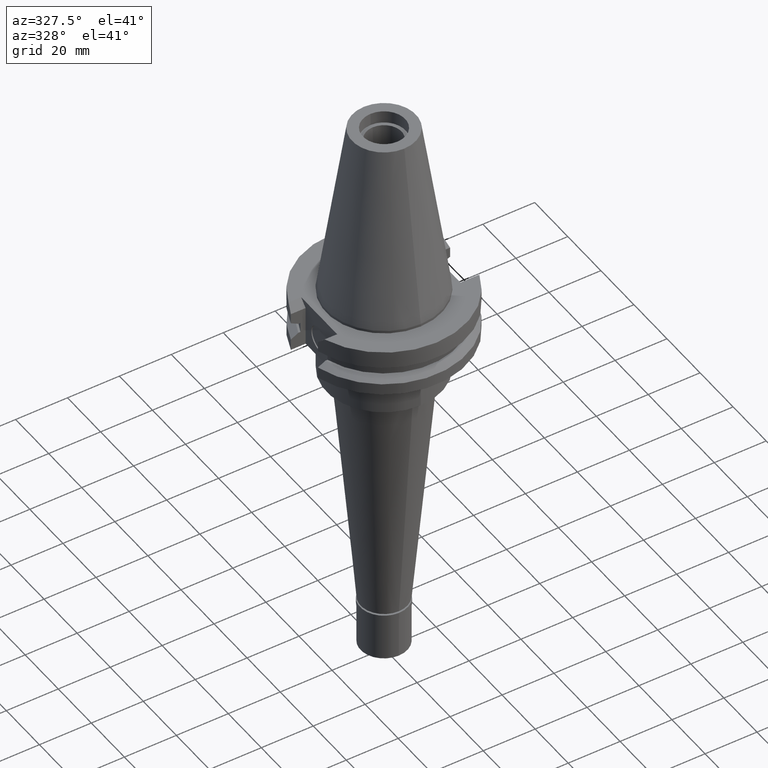
[diagram: clean part render]
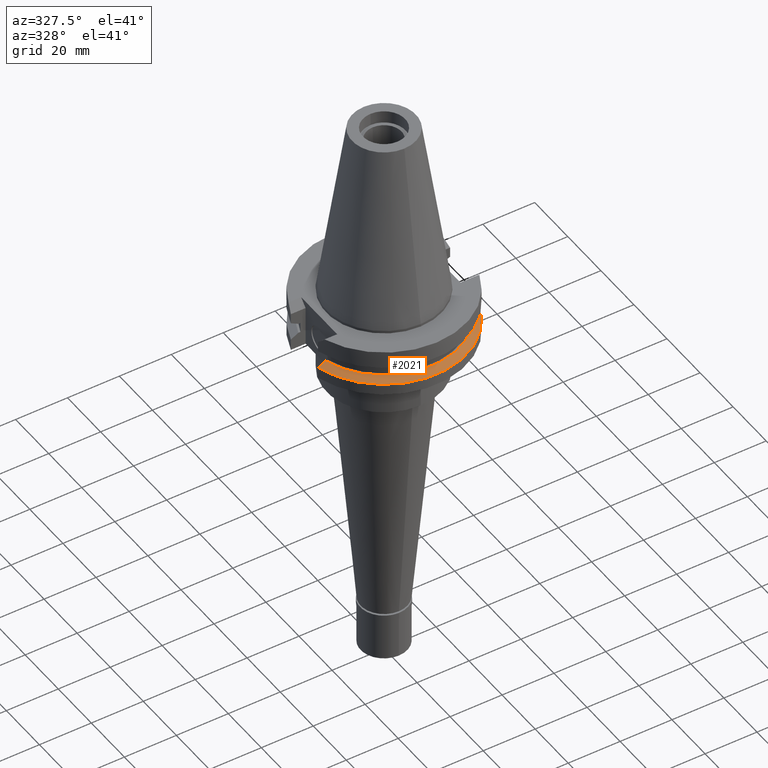
[diagram: same view with one face highlighted and labeled with its STEP entity id]
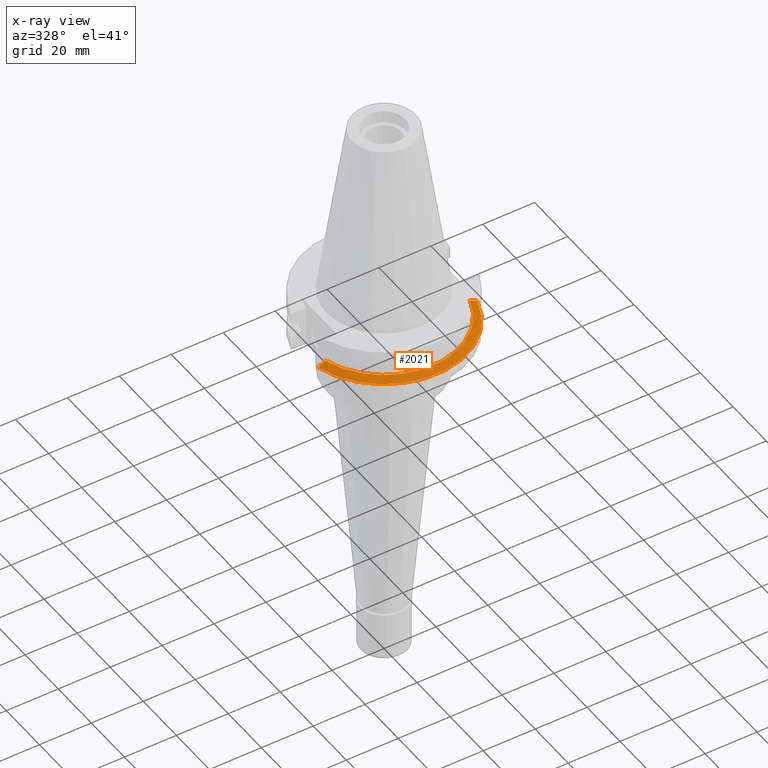
[diagram: x-ray of the same camera — body ghosted, the highlighted face saturated]
A machine part, auxiliary view. The second image highlights one B-rep face of the part: STEP entity #2021.
The next image is the same camera in x-ray: the body ghosted, the highlighted face saturated — about 0% of this face is hidden behind the body in this view.
In plain terms, the highlighted conical surface has half-angle 60 deg.
Its self-contained STEP definition (entity closure, byte-faithful):
#13 = EDGE_LOOP ( 'NONE', ( #523, #356, #2603, #1834 ) ) ;
#22 = EDGE_CURVE ( 'NONE', #1614, #1508, #1313, .T. ) ;
#139 = CARTESIAN_POINT ( 'NONE',  ( 0.0000000000000000000, 1.055026073064999954E-14, -13.85058338454000015 ) ) ;
#235 = CARTESIAN_POINT ( 'NONE',  ( 27.78616453828999866, -8.190000190935000646, -13.04749999999999943 ) ) ;
#257 = CARTESIAN_POINT ( 'NONE',  ( -29.69573935454999969, -8.189999973374000319, -14.10753479587999948 ) ) ;
#293 = EDGE_CURVE ( 'NONE', #1732, #3167, #491, .T. ) ;
#356 = ORIENTED_EDGE ( 'NONE', *, *, #22, .T. ) ;
#491 = CIRCLE ( 'NONE', #1884, 31.74999999999998579 ) ;
#515 = CARTESIAN_POINT ( 'NONE',  ( -28.73264168687000009, -8.190000281779999725, -13.57212617333000004 ) ) ;
#523 = ORIENTED_EDGE ( 'NONE', *, *, #3166, .F. ) ;
#678 = DIRECTION ( 'NONE',  ( 0.0000000000000000000, 0.0000000000000000000, -1.000000000000000000 ) ) ;
#715 = CARTESIAN_POINT ( 'NONE',  ( -27.78617704655999887, -8.189999360263000128, -13.04749999999999943 ) ) ;
#998 = CARTESIAN_POINT ( 'NONE',  ( -30.67550165945999652, -8.189999874273000913, -14.65366564556999940 ) ) ;
#1124 = CARTESIAN_POINT ( 'NONE',  ( -30.67550165945999652, -8.189999874273000913, -14.65366564556999940 ) ) ;
#1313 = CIRCLE ( 'NONE', #3068, 28.96803755052999918 ) ;
#1370 = DIRECTION ( 'NONE',  ( 0.0000000000000000000, -1.000000000000000000, 0.0000000000000000000 ) ) ;
#1402 = CARTESIAN_POINT ( 'NONE',  ( 27.78616453828999866, -8.190000190935000646, -13.04749999999999943 ) ) ;
#1427 = CARTESIAN_POINT ( 'NONE',  ( 30.67550146398999900, -8.190000606413999407, -14.65367218811000072 ) ) ;
#1461 = DIRECTION ( 'NONE',  ( 0.9661575315241073270, -0.2579527559055020958, 0.0000000000000000000 ) ) ;
#1508 = VERTEX_POINT ( 'NONE', #2871 ) ;
#1603 = DIRECTION ( 'NONE',  ( 0.0000000000000000000, 0.0000000000000000000, -1.000000000000000000 ) ) ;
#1614 = VERTEX_POINT ( 'NONE', #235 ) ;
#1667 = CARTESIAN_POINT ( 'NONE',  ( 28.10007672149999891, -8.190000190935000646, -13.22134296263999964 ) ) ;
#1731 = CARTESIAN_POINT ( 'NONE',  ( -30.34732583384000293, -8.189999874273000913, -14.47060545747000049 ) ) ;
#1732 = VERTEX_POINT ( 'NONE', #1923 ) ;
#1834 = ORIENTED_EDGE ( 'NONE', *, *, #293, .F. ) ;
#1873 = B_SPLINE_CURVE_WITH_KNOTS ( 'NONE', 3,
 ( #1402, #1667, #3116, #2610, #2649, #1427 ),
 .UNSPECIFIED., .F., .F.,
 ( 4, 1, 1, 4 ),
 ( 0.0000000000000000000, 0.3333333333333000081, 0.6666666666667000474, 1.000000000000000000 ),
 .UNSPECIFIED. ) ;
#1884 = AXIS2_PLACEMENT_3D ( 'NONE', #2675, #2265, #1461 ) ;
#1923 = CARTESIAN_POINT ( 'NONE',  ( 30.67550146398999900, -8.190000606413999407, -14.65367218811000072 ) ) ;
#1968 = CARTESIAN_POINT ( 'NONE',  ( -28.10007680005000097, -8.189999360263000128, -13.22133608372000069 ) ) ;
#2021 = ADVANCED_FACE ( 'NONE', ( #2869 ), #2789, .T. ) ;
#2134 = DIRECTION ( 'NONE',  ( 0.0000000000000000000, -1.000000000000000000, 0.0000000000000000000 ) ) ;
#2265 = DIRECTION ( 'NONE',  ( 0.0000000000000000000, 0.0000000000000000000, -1.000000000000000000 ) ) ;
#2284 = B_SPLINE_CURVE_WITH_KNOTS ( 'NONE', 3,
 ( #998, #1731, #257, #515, #1968, #715 ),
 .UNSPECIFIED., .F., .F.,
 ( 4, 1, 1, 4 ),
 ( 0.0000000000000000000, 0.3333333333333000081, 0.6666666666667000474, 1.000000000000000000 ),
 .UNSPECIFIED. ) ;
#2603 = ORIENTED_EDGE ( 'NONE', *, *, #2792, .F. ) ;
#2610 = CARTESIAN_POINT ( 'NONE',  ( 29.69573794382000287, -8.189999742464999954, -14.10753134895999850 ) ) ;
#2636 = CARTESIAN_POINT ( 'NONE',  ( 0.0000000000000000000, 1.055026073064999954E-14, -13.04749999999999943 ) ) ;
#2649 = CARTESIAN_POINT ( 'NONE',  ( 30.34731980573000243, -8.190000606413999407, -14.47060875001000113 ) ) ;
#2675 = CARTESIAN_POINT ( 'NONE',  ( 0.0000000000000000000, 1.055026073064999954E-14, -14.65366676908000088 ) ) ;
#2789 = CONICAL_SURFACE ( 'NONE', #3106, 30.35901877526999826, 1.047197551196400456 ) ;
#2792 = EDGE_CURVE ( 'NONE', #3167, #1508, #2284, .T. ) ;
#2869 = FACE_OUTER_BOUND ( 'NONE', #13, .T. ) ;
#2871 = CARTESIAN_POINT ( 'NONE',  ( -27.78617704655999887, -8.189999360263000128, -13.04749999999999943 ) ) ;
#3068 = AXIS2_PLACEMENT_3D ( 'NONE', #2636, #1603, #1370 ) ;
#3106 = AXIS2_PLACEMENT_3D ( 'NONE', #139, #678, #2134 ) ;
#3116 = CARTESIAN_POINT ( 'NONE',  ( 28.73263673305000054, -8.189999991751999886, -13.57212058430999946 ) ) ;
#3166 = EDGE_CURVE ( 'NONE', #1614, #1732, #1873, .T. ) ;
#3167 = VERTEX_POINT ( 'NONE', #1124 ) ;